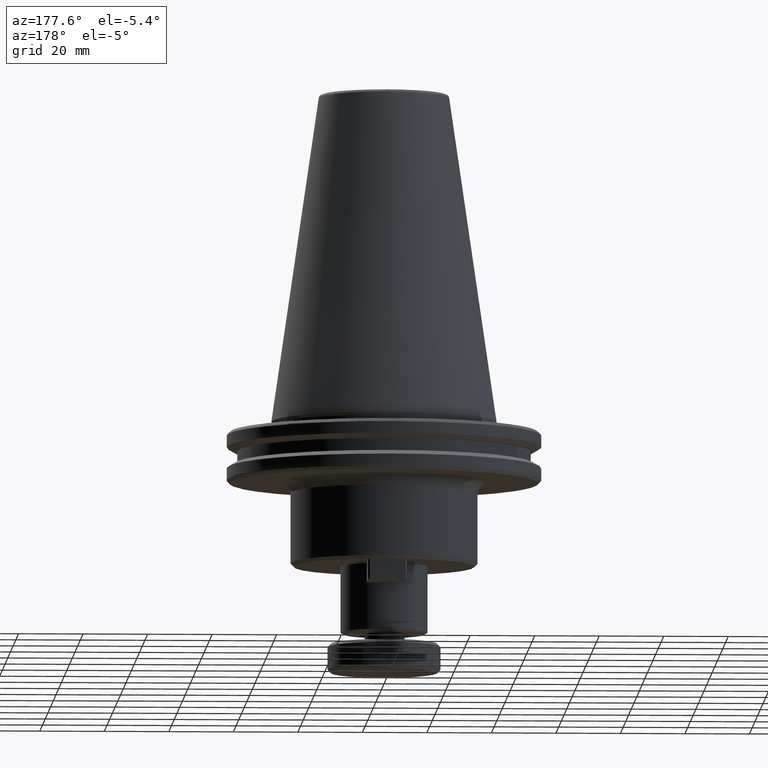
[diagram: clean part render]
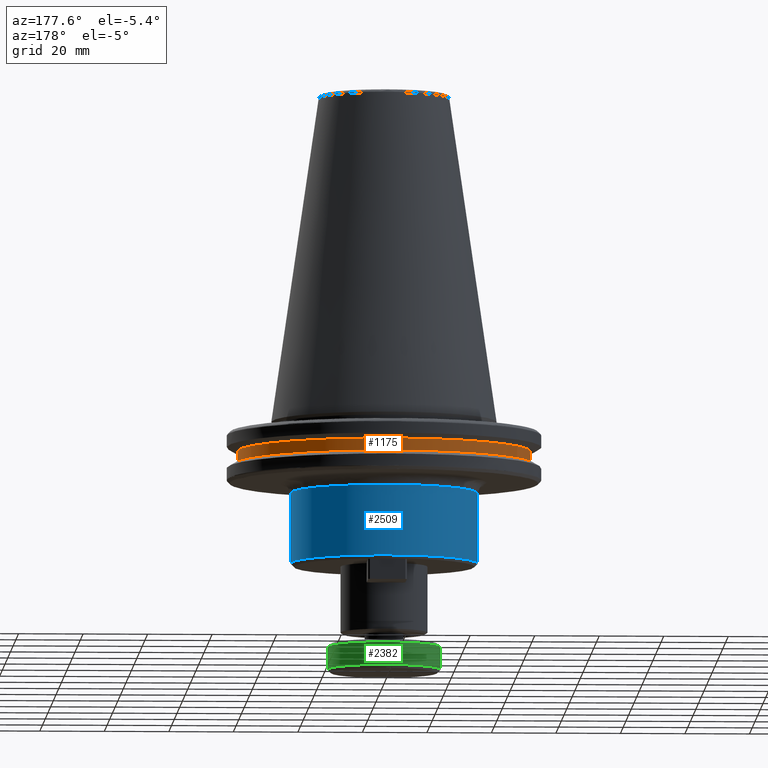
[diagram: same view with three faces highlighted in distinct colors, each labeled with its STEP entity id]
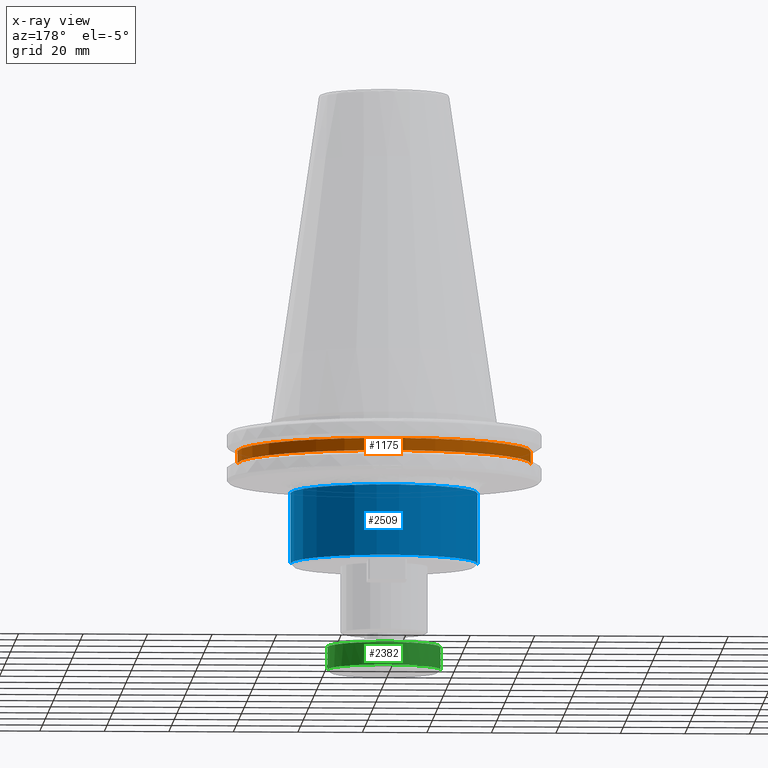
[diagram: x-ray of the same camera — body ghosted, the three highlighted faces saturated]
A machine part, auxiliary view with three faces highlighted in distinct colors.
The next image is the same camera in x-ray (body ghosted, the three faces saturated) — at least one of them is partly hidden behind the body in this view.
Their STEP definitions:

[orange] entity #1175 — the highlighted cylindrical surface (partial cylindrical patch) has radius 45.5 mm, axis along (0, 0, 1).
#18 = CIRCLE ( 'NONE', #2706, 45.50000000000000000 ) ;
#47 = ORIENTED_EDGE ( 'NONE', *, *, #1937, .T. ) ;
#347 = EDGE_CURVE ( 'NONE', #3695, #3111, #978, .T. ) ;
#727 = ORIENTED_EDGE ( 'NONE', *, *, #3913, .T. ) ;
#748 = CARTESIAN_POINT ( 'NONE',  ( 45.50000000000000000, 0.0000000000000000000, -13.00000000000001100 ) ) ;
#800 = CARTESIAN_POINT ( 'NONE',  ( -45.50000000000000000, 5.572142936120457100E-015, -13.00000000000001100 ) ) ;
#863 = VERTEX_POINT ( 'NONE', #2796 ) ;
#951 = DIRECTION ( 'NONE',  ( 0.0000000000000000000, 0.0000000000000000000, 1.000000000000000000 ) ) ;
#960 = CARTESIAN_POINT ( 'NONE',  ( 45.50000000000000000, 0.0000000000000000000, 113.5216080541959500 ) ) ;
#978 = LINE ( 'NONE', #960, #2757 ) ;
#1126 = LINE ( 'NONE', #3778, #3606 ) ;
#1175 = ADVANCED_FACE ( 'NONE', ( #4004 ), #3806, .T. ) ;
#1384 = EDGE_CURVE ( 'NONE', #3695, #3000, #2432, .T. ) ;
#1452 = DIRECTION ( 'NONE',  ( 0.0000000000000000000, 0.0000000000000000000, 1.000000000000000000 ) ) ;
#1533 = DIRECTION ( 'NONE',  ( 1.000000000000000000, 0.0000000000000000000, 0.0000000000000000000 ) ) ;
#1540 = CARTESIAN_POINT ( 'NONE',  ( 0.0000000000000000000, 0.0000000000000000000, -13.00000000000001100 ) ) ;
#1937 = EDGE_CURVE ( 'NONE', #863, #3111, #18, .T. ) ;
#2140 = EDGE_LOOP ( 'NONE', ( #3355, #727, #47, #3318 ) ) ;
#2229 = CARTESIAN_POINT ( 'NONE',  ( 0.0000000000000000000, 0.0000000000000000000, -9.199999999999999300 ) ) ;
#2432 = CIRCLE ( 'NONE', #3399, 45.50000000000000000 ) ;
#2706 = AXIS2_PLACEMENT_3D ( 'NONE', #2229, #3715, #4027 ) ;
#2757 = VECTOR ( 'NONE', #951, 1000.000000000000000 ) ;
#2796 = CARTESIAN_POINT ( 'NONE',  ( -45.50000000000000000, 5.572142936120457100E-015, -9.199999999999999300 ) ) ;
#3000 = VERTEX_POINT ( 'NONE', #800 ) ;
#3111 = VERTEX_POINT ( 'NONE', #3800 ) ;
#3318 = ORIENTED_EDGE ( 'NONE', *, *, #347, .F. ) ;
#3351 = DIRECTION ( 'NONE',  ( 0.0000000000000000000, 0.0000000000000000000, 1.000000000000000000 ) ) ;
#3355 = ORIENTED_EDGE ( 'NONE', *, *, #1384, .T. ) ;
#3361 = CARTESIAN_POINT ( 'NONE',  ( 0.0000000000000000000, 0.0000000000000000000, 113.5216080541959500 ) ) ;
#3399 = AXIS2_PLACEMENT_3D ( 'NONE', #1540, #3843, #1533 ) ;
#3606 = VECTOR ( 'NONE', #1452, 1000.000000000000000 ) ;
#3695 = VERTEX_POINT ( 'NONE', #748 ) ;
#3715 = DIRECTION ( 'NONE',  ( -0.0000000000000000000, -0.0000000000000000000, -1.000000000000000000 ) ) ;
#3728 = DIRECTION ( 'NONE',  ( 1.000000000000000000, 0.0000000000000000000, 0.0000000000000000000 ) ) ;
#3778 = CARTESIAN_POINT ( 'NONE',  ( -45.50000000000000000, 5.572142936120457100E-015, 113.5216080541959500 ) ) ;
#3800 = CARTESIAN_POINT ( 'NONE',  ( 45.50000000000000000, 0.0000000000000000000, -9.199999999999999300 ) ) ;
#3806 = CYLINDRICAL_SURFACE ( 'NONE', #3812, 45.50000000000000000 ) ;
#3812 = AXIS2_PLACEMENT_3D ( 'NONE', #3361, #3351, #3728 ) ;
#3843 = DIRECTION ( 'NONE',  ( 0.0000000000000000000, 0.0000000000000000000, 1.000000000000000000 ) ) ;
#3913 = EDGE_CURVE ( 'NONE', #3000, #863, #1126, .T. ) ;
#4004 = FACE_OUTER_BOUND ( 'NONE', #2140, .T. ) ;
#4027 = DIRECTION ( 'NONE',  ( 1.000000000000000000, 0.0000000000000000000, 0.0000000000000000000 ) ) ;

[blue] entity #2509 — the highlighted cylindrical surface (partial cylindrical patch) has radius 29 mm, axis along (0, 0, 1).
#2 = ORIENTED_EDGE ( 'NONE', *, *, #2966, .T. ) ;
#72 = EDGE_CURVE ( 'NONE', #3014, #930, #3347, .T. ) ;
#266 = ORIENTED_EDGE ( 'NONE', *, *, #72, .T. ) ;
#313 = EDGE_CURVE ( 'NONE', #993, #930, #2810, .T. ) ;
#336 = AXIS2_PLACEMENT_3D ( 'NONE', #3368, #690, #3675 ) ;
#394 = AXIS2_PLACEMENT_3D ( 'NONE', #538, #648, #632 ) ;
#470 = EDGE_LOOP ( 'NONE', ( #475, #2, #266, #3158 ) ) ;
#475 = ORIENTED_EDGE ( 'NONE', *, *, #1220, .T. ) ;
#538 = CARTESIAN_POINT ( 'NONE',  ( 0.0000000000000000000, 0.0000000000000000000, -22.10000000000000500 ) ) ;
#542 = LINE ( 'NONE', #1421, #2475 ) ;
#632 = DIRECTION ( 'NONE',  ( -1.000000000000000000, 0.0000000000000000000, 0.0000000000000000000 ) ) ;
#648 = DIRECTION ( 'NONE',  ( 0.0000000000000000000, 0.0000000000000000000, -1.000000000000000000 ) ) ;
#690 = DIRECTION ( 'NONE',  ( 0.0000000000000000000, 0.0000000000000000000, 1.000000000000000000 ) ) ;
#696 = CYLINDRICAL_SURFACE ( 'NONE', #336, 29.00000000000000000 ) ;
#930 = VERTEX_POINT ( 'NONE', #2602 ) ;
#993 = VERTEX_POINT ( 'NONE', #3815 ) ;
#1220 = EDGE_CURVE ( 'NONE', #993, #3994, #3420, .T. ) ;
#1421 = CARTESIAN_POINT ( 'NONE',  ( -29.00000000000000000, 3.551475717527324000E-015, 0.0000000000000000000 ) ) ;
#1434 = DIRECTION ( 'NONE',  ( 0.0000000000000000000, 0.0000000000000000000, 1.000000000000000000 ) ) ;
#1478 = CARTESIAN_POINT ( 'NONE',  ( 29.00000000000000000, 0.0000000000000000000, 0.0000000000000000000 ) ) ;
#1482 = CARTESIAN_POINT ( 'NONE',  ( -29.00000000000000000, 3.551475717527324000E-015, -44.00000000000000000 ) ) ;
#1916 = VECTOR ( 'NONE', #2486, 1000.000000000000000 ) ;
#2371 = FACE_OUTER_BOUND ( 'NONE', #470, .T. ) ;
#2475 = VECTOR ( 'NONE', #1434, 1000.000000000000000 ) ;
#2486 = DIRECTION ( 'NONE',  ( 0.0000000000000000000, 0.0000000000000000000, 1.000000000000000000 ) ) ;
#2509 = ADVANCED_FACE ( 'NONE', ( #2371 ), #696, .T. ) ;
#2602 = CARTESIAN_POINT ( 'NONE',  ( 29.00000000000000400, 0.0000000000000000000, -22.10000000000000500 ) ) ;
#2646 = DIRECTION ( 'NONE',  ( 1.000000000000000000, 0.0000000000000000000, 0.0000000000000000000 ) ) ;
#2648 = DIRECTION ( 'NONE',  ( 0.0000000000000000000, 0.0000000000000000000, 1.000000000000000000 ) ) ;
#2810 = LINE ( 'NONE', #1478, #1916 ) ;
#2966 = EDGE_CURVE ( 'NONE', #3994, #3014, #542, .T. ) ;
#3014 = VERTEX_POINT ( 'NONE', #3167 ) ;
#3158 = ORIENTED_EDGE ( 'NONE', *, *, #313, .F. ) ;
#3167 = CARTESIAN_POINT ( 'NONE',  ( -29.00000000000000400, 3.551475717527324800E-015, -22.10000000000000500 ) ) ;
#3347 = CIRCLE ( 'NONE', #394, 28.99999999999999600 ) ;
#3368 = CARTESIAN_POINT ( 'NONE',  ( 0.0000000000000000000, 0.0000000000000000000, 0.0000000000000000000 ) ) ;
#3420 = CIRCLE ( 'NONE', #3786, 29.00000000000000000 ) ;
#3471 = CARTESIAN_POINT ( 'NONE',  ( 0.0000000000000000000, 0.0000000000000000000, -44.00000000000000000 ) ) ;
#3675 = DIRECTION ( 'NONE',  ( 1.000000000000000000, 0.0000000000000000000, 0.0000000000000000000 ) ) ;
#3786 = AXIS2_PLACEMENT_3D ( 'NONE', #3471, #2648, #2646 ) ;
#3815 = CARTESIAN_POINT ( 'NONE',  ( 29.00000000000000000, 0.0000000000000000000, -44.00000000000000000 ) ) ;
#3994 = VERTEX_POINT ( 'NONE', #1482 ) ;

[green] entity #2382 — the highlighted cylindrical surface (partial cylindrical patch) has radius 17.5 mm, axis along (0, 0, 1).
#117 = VERTEX_POINT ( 'NONE', #1767 ) ;
#217 = VERTEX_POINT ( 'NONE', #2963 ) ;
#356 = DIRECTION ( 'NONE',  ( 0.0000000000000000000, 0.0000000000000000000, 1.000000000000000000 ) ) ;
#504 = AXIS2_PLACEMENT_3D ( 'NONE', #510, #2858, #841 ) ;
#510 = CARTESIAN_POINT ( 'NONE',  ( 0.0000000000000000000, 0.0000000000000000000, -77.00000000000000000 ) ) ;
#572 = DIRECTION ( 'NONE',  ( 1.000000000000000000, 0.0000000000000000000, 0.0000000000000000000 ) ) ;
#702 = CIRCLE ( 'NONE', #1775, 17.50000000000000000 ) ;
#813 = VECTOR ( 'NONE', #1797, 1000.000000000000000 ) ;
#841 = DIRECTION ( 'NONE',  ( 1.000000000000000000, 0.0000000000000000000, 0.0000000000000000000 ) ) ;
#963 = ORIENTED_EDGE ( 'NONE', *, *, #2493, .T. ) ;
#982 = VERTEX_POINT ( 'NONE', #3804 ) ;
#999 = FACE_OUTER_BOUND ( 'NONE', #4247, .T. ) ;
#1115 = EDGE_CURVE ( 'NONE', #217, #2609, #3429, .T. ) ;
#1123 = ORIENTED_EDGE ( 'NONE', *, *, #3013, .T. ) ;
#1153 = VERTEX_POINT ( 'NONE', #4076 ) ;
#1226 = DIRECTION ( 'NONE',  ( 0.0000000000000000000, 0.0000000000000000000, 1.000000000000000000 ) ) ;
#1261 = CIRCLE ( 'NONE', #504, 17.50000000000000000 ) ;
#1321 = CARTESIAN_POINT ( 'NONE',  ( 0.0000000000000000000, 0.0000000000000000000, -70.00000000000000000 ) ) ;
#1503 = AXIS2_PLACEMENT_3D ( 'NONE', #1321, #4036, #4051 ) ;
#1641 = EDGE_CURVE ( 'NONE', #2609, #1153, #4042, .T. ) ;
#1767 = CARTESIAN_POINT ( 'NONE',  ( -17.50000000000000000, 2.143131898507868200E-015, -77.00000000000000000 ) ) ;
#1775 = AXIS2_PLACEMENT_3D ( 'NONE', #2355, #356, #2691 ) ;
#1780 = VECTOR ( 'NONE', #4114, 1000.000000000000000 ) ;
#1797 = DIRECTION ( 'NONE',  ( 0.0000000000000000000, 0.0000000000000000000, 1.000000000000000000 ) ) ;
#2233 = CYLINDRICAL_SURFACE ( 'NONE', #3492, 17.50000000000000000 ) ;
#2355 = CARTESIAN_POINT ( 'NONE',  ( 0.0000000000000000000, 0.0000000000000000000, -77.00000000000000000 ) ) ;
#2382 = ADVANCED_FACE ( 'NONE', ( #999 ), #2233, .T. ) ;
#2493 = EDGE_CURVE ( 'NONE', #217, #982, #702, .T. ) ;
#2609 = VERTEX_POINT ( 'NONE', #3747 ) ;
#2691 = DIRECTION ( 'NONE',  ( 1.000000000000000000, 0.0000000000000000000, 0.0000000000000000000 ) ) ;
#2858 = DIRECTION ( 'NONE',  ( 0.0000000000000000000, 0.0000000000000000000, 1.000000000000000000 ) ) ;
#2863 = LINE ( 'NONE', #3758, #813 ) ;
#2956 = CARTESIAN_POINT ( 'NONE',  ( 0.0000000000000000000, 0.0000000000000000000, 0.0000000000000000000 ) ) ;
#2963 = CARTESIAN_POINT ( 'NONE',  ( 17.50000000000000000, 0.0000000000000000000, -77.00000000000000000 ) ) ;
#3013 = EDGE_CURVE ( 'NONE', #117, #1153, #2863, .T. ) ;
#3114 = EDGE_CURVE ( 'NONE', #982, #117, #1261, .T. ) ;
#3380 = ORIENTED_EDGE ( 'NONE', *, *, #1641, .F. ) ;
#3429 = LINE ( 'NONE', #4230, #1780 ) ;
#3492 = AXIS2_PLACEMENT_3D ( 'NONE', #2956, #1226, #572 ) ;
#3747 = CARTESIAN_POINT ( 'NONE',  ( 17.50000000000000000, 0.0000000000000000000, -70.00000000000000000 ) ) ;
#3758 = CARTESIAN_POINT ( 'NONE',  ( -17.50000000000000000, 2.143131898507868200E-015, 0.0000000000000000000 ) ) ;
#3804 = CARTESIAN_POINT ( 'NONE',  ( 2.143131898507866700E-015, 17.49999999999998900, -77.00000000000000000 ) ) ;
#4036 = DIRECTION ( 'NONE',  ( -0.0000000000000000000, -0.0000000000000000000, 1.000000000000000000 ) ) ;
#4042 = CIRCLE ( 'NONE', #1503, 17.50000000000000000 ) ;
#4051 = DIRECTION ( 'NONE',  ( -1.000000000000000000, 0.0000000000000000000, 0.0000000000000000000 ) ) ;
#4076 = CARTESIAN_POINT ( 'NONE',  ( -17.50000000000000000, 2.143131898507868200E-015, -70.00000000000000000 ) ) ;
#4094 = ORIENTED_EDGE ( 'NONE', *, *, #3114, .T. ) ;
#4098 = ORIENTED_EDGE ( 'NONE', *, *, #1115, .F. ) ;
#4114 = DIRECTION ( 'NONE',  ( 0.0000000000000000000, 0.0000000000000000000, 1.000000000000000000 ) ) ;
#4230 = CARTESIAN_POINT ( 'NONE',  ( 17.50000000000000000, 0.0000000000000000000, 0.0000000000000000000 ) ) ;
#4247 = EDGE_LOOP ( 'NONE', ( #4094, #1123, #3380, #4098, #963 ) ) ;